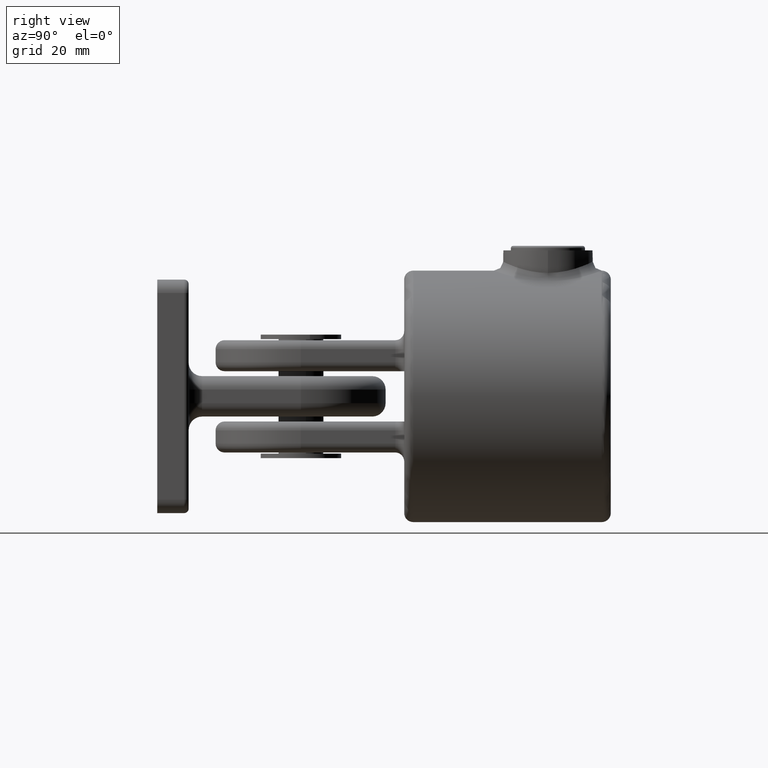
[diagram: clean part render]
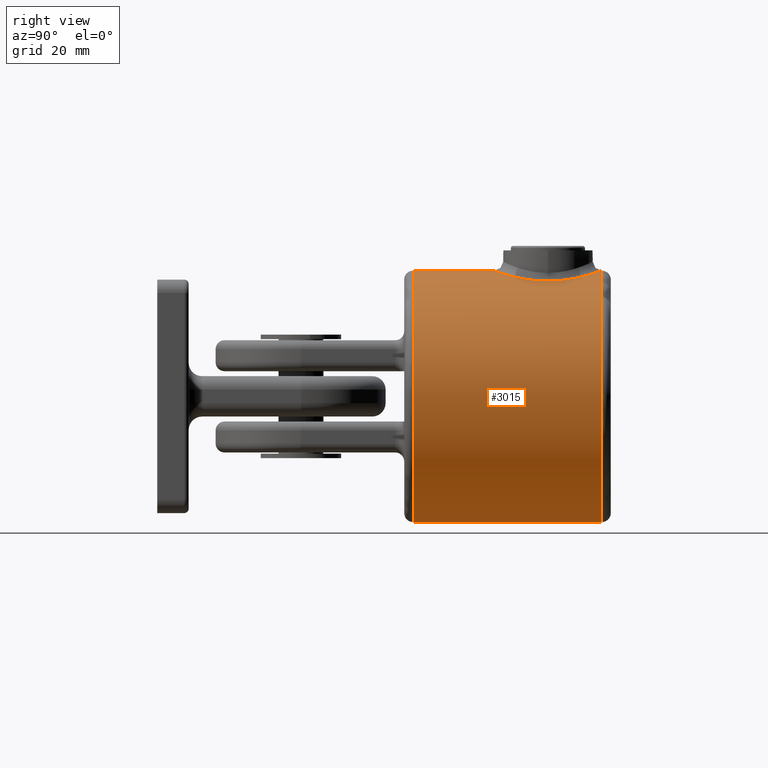
[diagram: same view with one face highlighted and labeled with its STEP entity id]
A machine part, right view. The second image highlights one B-rep face of the part: STEP entity #3015.
In plain terms, the highlighted cylindrical surface (bore or boss wall) has radius 28 mm, axis along (0, 1, -0).
Its self-contained STEP definition (entity closure, byte-faithful):
#28 = CARTESIAN_POINT ( 'NONE',  ( 7.532800549669001811, 5.110973738277556855, 26.96924432193691246 ) ) ;
#81 = CARTESIAN_POINT ( 'NONE',  ( 3.744687437386371887, 2.661515700555105557, 27.75740275072740815 ) ) ;
#128 = CARTESIAN_POINT ( 'NONE',  ( -2.644658232925793051, 25.66780403237011043, 27.87733791148229301 ) ) ;
#608 = ORIENTED_EDGE ( 'NONE', *, *, #3634, .T. ) ;
#996 = CARTESIAN_POINT ( 'NONE',  ( -10.64116031228593862, 10.23714122589253961, 25.89937759353496105 ) ) ;
#1099 = CARTESIAN_POINT ( 'NONE',  ( -4.783712661360009832, 3.142249767967116192, 27.59052361693120403 ) ) ;
#1152 = CARTESIAN_POINT ( 'NONE',  ( -10.11956413345941819, 8.800593386980857247, 26.10896200769188980 ) ) ;
#1209 = CARTESIAN_POINT ( 'NONE',  ( 11.19999059478599790, 13.61864809979259761, 25.66242799652462736 ) ) ;
#1257 = CARTESIAN_POINT ( 'NONE',  ( 11.18308204967106967, 13.23728656933544379, 25.66982781787445589 ) ) ;
#1306 = CARTESIAN_POINT ( 'NONE',  ( -7.543183185850574901, 22.90392337280938051, 26.96989668486448011 ) ) ;
#1367 = CARTESIAN_POINT ( 'NONE',  ( 5.783154808761124421, 3.693566784971920480, 27.40323246549202807 ) ) ;
#1416 = DIRECTION ( 'NONE',  ( -0.000000000000000000, -1.000000000000000000, -0.000000000000000000 ) ) ;
#1420 = CARTESIAN_POINT ( 'NONE',  ( 0.7723240950228391632, 2.021468954359126435, 27.99196728377950905 ) ) ;
#1582 = DIRECTION ( 'NONE',  ( 0.000000000000000000, 1.000000000000000000, 0.000000000000000000 ) ) ;
#2252 = CARTESIAN_POINT ( 'NONE',  ( -2.647919537594742412, 2.333000201121655071, 27.87704396042105515 ) ) ;
#2299 = CARTESIAN_POINT ( 'NONE',  ( -10.51748741808822629, 18.14279243670796760, 25.95001626174369846 ) ) ;
#2373 = DIRECTION ( 'NONE',  ( -0.000000000000000000, -1.000000000000000000, -0.000000000000000000 ) ) ;
#2472 = CARTESIAN_POINT ( 'NONE',  ( -10.92828268449406615, 11.34522445561190196, 25.77941137766213231 ) ) ;
#2528 = CARTESIAN_POINT ( 'NONE',  ( 6.691377683936013732, 23.63099030850856863, 27.19047154736448135 ) ) ;
#2584 = CARTESIAN_POINT ( 'NONE',  ( 0.7696939795550981067, 25.97872372723444556, 27.99203922540072398 ) ) ;
#2643 = CARTESIAN_POINT ( 'NONE',  ( 7.808734503114975745, 22.61113766519815726, 26.89037696588745163 ) ) ;
#2690 = CARTESIAN_POINT ( 'NONE',  ( -3.741970592275058127, 25.31774902416056960, 27.75122849919262080 ) ) ;
#3015 = ADVANCED_FACE ( 'NONE', ( #10236, #11044 ), #13246, .T. ) ;
#3046 = AXIS2_PLACEMENT_3D ( 'NONE', #9155, #1416, #14465 ) ;
#3523 = CARTESIAN_POINT ( 'NONE',  ( -11.13127737483506152, 12.46898257816558697, 25.69272888675468280 ) ) ;
#3572 = CARTESIAN_POINT ( 'NONE',  ( 0.000000000000000000, 2.000000000000001776, 28.00000000000000000 ) ) ;
#3634 = EDGE_CURVE ( 'NONE', #4831, #4831, #15885, .T. ) ;
#3638 = CARTESIAN_POINT ( 'NONE',  ( -10.11484451454184175, 19.20968446854460154, 26.11079207424144144 ) ) ;
#3751 = CARTESIAN_POINT ( 'NONE',  ( 0.000000000000000000, 46.00000000000000000, 0.000000000000000000 ) ) ;
#3786 = EDGE_LOOP ( 'NONE', ( #10391, #10880 ) ) ;
#3805 = CARTESIAN_POINT ( 'NONE',  ( 1.084202172485504434E-16, 1.999999999999998224, 28.00000000000001066 ) ) ;
#3864 = CARTESIAN_POINT ( 'NONE',  ( 7.543656428366906752, 22.87855492968563098, 26.96622558423325344 ) ) ;
#3913 = CARTESIAN_POINT ( 'NONE',  ( 4.099533104611288614, 25.17455714945327117, 27.70048619003869561 ) ) ;
#3966 = CARTESIAN_POINT ( 'NONE',  ( 6.685855451333902799, 4.364677285227934966, 27.19181575693028208 ) ) ;
#4024 = CARTESIAN_POINT ( 'NONE',  ( 3.026452091002769684, 2.417951931987433412, 27.84589731764526377 ) ) ;
#4831 = VERTEX_POINT ( 'NONE', #10327 ) ;
#4832 = CARTESIAN_POINT ( 'NONE',  ( -8.997599709604871876, 6.843450776359100374, 26.51602716940408300 ) ) ;
#4941 = CARTESIAN_POINT ( 'NONE',  ( -9.785390622970792762, 19.88838342800938364, 26.23774433766786984 ) ) ;
#5160 = CARTESIAN_POINT ( 'NONE',  ( 8.561818085885281704, 21.77491502563403003, 26.66402262778221299 ) ) ;
#5199 = B_SPLINE_CURVE_WITH_KNOTS ( 'NONE', 3,
 ( #6224, #14030, #15213, #2252, #6274, #6169, #8747, #1099, #15159, #6109, #8850, #8804, #12655, #13972, #16612, #4832, #16454, #10136, #1152, #11319, #996, #10193, #2472, #3523, #12488, #10026, #13799, #15102, #7401, #16393, #2299, #3638, #4941, #13921, #7518, #16512, #5323, #1306, #9110, #6442, #10405, #11479, #2690, #14140, #128, #11586, #7681, #9162, #2584, #12924, #12815, #9001, #15435, #6548, #3913, #11634, #5270, #2528, #14251, #3864, #2643, #5160, #7901, #11534, #8953, #14075, #7733, #16670, #16725, #10349, #11689, #1209, #1257, #10243, #12869, #6602, #10298, #14304, #7788, #15543, #5217, #14191, #9056, #6500, #28, #15487, #3966, #1367, #7841, #81, #4024, #12981, #15590, #1420, #10459, #3805 ),
 .UNSPECIFIED., .T., .F.,
 ( 4, 2, 2, 2, 2, 2, 2, 2, 2, 2, 2, 2, 2, 2, 2, 2, 2, 2, 2, 2, 2, 2, 2, 2, 2, 2, 2, 2, 2, 2, 2, 2, 2, 2, 2, 2, 2, 2, 2, 2, 2, 2, 2, 2, 2, 2, 2, 4 ),
 ( 0.05573573240919368205, 0.05805783334056103390, 0.05921888380624470982, 0.06037993427192837881, 0.06154098473761205473, 0.06270203520329573066, 0.06502413613466308251, 0.06618518660034676537, 0.06734623706603043436, 0.06966833799739778621, 0.07082938846308146907, 0.07199043892876513806, 0.07431253986013250379, 0.07663464079149986952, 0.07779569125718355238, 0.07895674172286723524, 0.08127884265423460097, 0.08243989311991829771, 0.08360094358560199446, 0.08592304451696937406, 0.08824514544833675367, 0.08940619591402043653, 0.09056724637970411940, 0.09288934731107151288, 0.09405039777675519574, 0.09521144824243887861, 0.09637249870812258923, 0.09753354917380627209, 0.09985565010517363782, 0.1010167005708573484, 0.1021777510365410313, 0.1044998519679084248, 0.1056609024335921077, 0.1068219528992757905, 0.1091440538306431701, 0.1114661547620105359, 0.1126272052276942326, 0.1137882556933779155, 0.1161103566247453089, 0.1172714070904289918, 0.1184324575561126747, 0.1207545584874800682, 0.1219156089531637510, 0.1230766594188474616, 0.1253987603502148274, 0.1277208612815822208, 0.1288819117472659037, 0.1300429622129496143 ),
 .UNSPECIFIED. ) ;
#5217 = CARTESIAN_POINT ( 'NONE',  ( 9.591048099897637513, 7.791215666928285266, 26.30693345468935718 ) ) ;
#5270 = CARTESIAN_POINT ( 'NONE',  ( 5.785074405635080907, 24.30545509505185464, 27.40288355683983923 ) ) ;
#5323 = CARTESIAN_POINT ( 'NONE',  ( -8.296535899870814745, 22.07048086767498418, 26.74390074398356987 ) ) ;
#6109 = CARTESIAN_POINT ( 'NONE',  ( -5.769200118086655671, 3.706748654926748987, 27.40121333363465794 ) ) ;
#6169 = CARTESIAN_POINT ( 'NONE',  ( -3.744827135944821972, 2.683347793272316206, 27.75083880446603146 ) ) ;
#6224 = CARTESIAN_POINT ( 'NONE',  ( 1.084202172485504434E-16, 1.999999999999998224, 28.00000000000001066 ) ) ;
#6274 = CARTESIAN_POINT ( 'NONE',  ( -3.021373893287945922, 2.437737596081587022, 27.83889517251941115 ) ) ;
#6329 = DIRECTION ( 'NONE',  ( 0.000000000000000000, 0.000000000000000000, -1.000000000000000000 ) ) ;
#6442 = CARTESIAN_POINT ( 'NONE',  ( -5.767352570625357444, 24.31738305150062729, 27.40675422498308222 ) ) ;
#6500 = CARTESIAN_POINT ( 'NONE',  ( 7.801396604794496703, 5.381135923657353715, 26.89252246397644086 ) ) ;
#6548 = CARTESIAN_POINT ( 'NONE',  ( 3.742234252473591649, 25.31759204910764538, 27.75117409762413345 ) ) ;
#6602 = CARTESIAN_POINT ( 'NONE',  ( 10.85744776363479858, 10.95586622200028160, 25.80965000872682324 ) ) ;
#7401 = CARTESIAN_POINT ( 'NONE',  ( -10.84089027908294689, 17.03882154598195697, 25.81641548228865446 ) ) ;
#7518 = CARTESIAN_POINT ( 'NONE',  ( -8.984786364356219579, 21.17490072222729580, 26.52036537418151951 ) ) ;
#7681 = CARTESIAN_POINT ( 'NONE',  ( -0.7687833532670446113, 25.99983540633282075, 27.99993855169861234 ) ) ;
#7733 = CARTESIAN_POINT ( 'NONE',  ( 10.25663744761835083, 18.83545114105362117, 26.05421008773298297 ) ) ;
#7788 = CARTESIAN_POINT ( 'NONE',  ( 10.10528906151702166, 8.811221427791643634, 26.11349804759415250 ) ) ;
#7841 = CARTESIAN_POINT ( 'NONE',  ( 5.135538494342041460, 3.305015188848794416, 27.53402142519213669 ) ) ;
#7901 = CARTESIAN_POINT ( 'NONE',  ( 9.008094344440811696, 21.17248677086261566, 26.51466327247760546 ) ) ;
#8180 = EDGE_CURVE ( 'NONE', #9291, #9291, #5199, .T. ) ;
#8747 = CARTESIAN_POINT ( 'NONE',  ( -4.097098644318603711, 2.824551964649088642, 27.70080654027275102 ) ) ;
#8804 = CARTESIAN_POINT ( 'NONE',  ( -6.997881174665810278, 4.597280063608572220, 27.11859708352944409 ) ) ;
#8850 = CARTESIAN_POINT ( 'NONE',  ( -6.087440023879439721, 3.919477437643853701, 27.33203680910113675 ) ) ;
#8953 = CARTESIAN_POINT ( 'NONE',  ( 9.778169008957179997, 19.86412549992865806, 26.23773088389403085 ) ) ;
#9001 = CARTESIAN_POINT ( 'NONE',  ( 2.654956995303310308, 25.66505706688722199, 27.87633630452182842 ) ) ;
#9056 = CARTESIAN_POINT ( 'NONE',  ( 8.559149010179272210, 6.221292398433961424, 26.66494294133507736 ) ) ;
#9110 = CARTESIAN_POINT ( 'NONE',  ( -6.987466508292720313, 23.41187922168014879, 27.12135403363952335 ) ) ;
#9155 = CARTESIAN_POINT ( 'NONE',  ( 0.000000000000000000, 44.00000000000000000, 0.000000000000000000 ) ) ;
#9162 = CARTESIAN_POINT ( 'NONE',  ( 0.3810297461700841160, 26.00008193641980725, 28.00003058959620716 ) ) ;
#9291 = VERTEX_POINT ( 'NONE', #3572 ) ;
#9684 = EDGE_LOOP ( 'NONE', ( #608 ) ) ;
#10026 = CARTESIAN_POINT ( 'NONE',  ( -11.19967922403928995, 14.77934373779500987, 25.66256388984322356 ) ) ;
#10136 = CARTESIAN_POINT ( 'NONE',  ( -9.790936155004080987, 8.122736003462526000, 26.23562788369275367 ) ) ;
#10193 = CARTESIAN_POINT ( 'NONE',  ( -10.84392551868970678, 10.97376392520389032, 25.81513764963068169 ) ) ;
#10236 = FACE_OUTER_BOUND ( 'NONE', #3786, .T. ) ;
#10243 = CARTESIAN_POINT ( 'NONE',  ( 11.11482222801922326, 12.47389903170395442, 25.69945741000236339 ) ) ;
#10298 = CARTESIAN_POINT ( 'NONE',  ( 10.65494919772683780, 10.22386606559775757, 25.89506836407592516 ) ) ;
#10327 = CARTESIAN_POINT ( 'NONE',  ( 0.000000000000000000, 44.00000000000000000, 28.00000000000000000 ) ) ;
#10349 = CARTESIAN_POINT ( 'NONE',  ( 11.13292152234207322, 15.52252160966305006, 25.69202880320895588 ) ) ;
#10391 = ORIENTED_EDGE ( 'NONE', *, *, #15763, .T. ) ;
#10405 = CARTESIAN_POINT ( 'NONE',  ( -5.120726478337096488, 24.70217397589465946, 27.53650125683323324 ) ) ;
#10459 = CARTESIAN_POINT ( 'NONE',  ( 0.3835493169420673976, 1.999999999999997780, 28.00000000000000711 ) ) ;
#10880 = ORIENTED_EDGE ( 'NONE', *, *, #8180, .T. ) ;
#11044 = FACE_OUTER_BOUND ( 'NONE', #9684, .T. ) ;
#11319 = CARTESIAN_POINT ( 'NONE',  ( -10.52201732769975173, 9.870353291977027155, 25.94817951606932382 ) ) ;
#11479 = CARTESIAN_POINT ( 'NONE',  ( -4.093829921693517448, 25.17677839857116950, 27.70127689937103099 ) ) ;
#11534 = CARTESIAN_POINT ( 'NONE',  ( 9.596008841708432158, 20.20009512200968160, 26.30513062793383838 ) ) ;
#11586 = CARTESIAN_POINT ( 'NONE',  ( -1.525117015240219365, 25.91623995995735186, 27.96846014512829015 ) ) ;
#11634 = CARTESIAN_POINT ( 'NONE',  ( 5.138776720604435688, 24.69298453166504359, 27.53335070740720170 ) ) ;
#11689 = CARTESIAN_POINT ( 'NONE',  ( 11.20001879868762984, 14.76175212431766504, 25.66241568733281397 ) ) ;
#12246 = CIRCLE ( 'NONE', #14308, 28.00000000000000000 ) ;
#12488 = CARTESIAN_POINT ( 'NONE',  ( -11.20031858288285775, 13.23127637783641930, 25.66228485079984267 ) ) ;
#12655 = CARTESIAN_POINT ( 'NONE',  ( -7.550984671966509687, 5.103422673934590037, 26.96773982891529897 ) ) ;
#12815 = CARTESIAN_POINT ( 'NONE',  ( 1.911994119712420837, 25.83083547910570488, 27.93712943192083031 ) ) ;
#12869 = CARTESIAN_POINT ( 'NONE',  ( 11.06301791402029799, 12.08973872292364327, 25.72188146330537961 ) ) ;
#12924 = CARTESIAN_POINT ( 'NONE',  ( 1.535044498165718752, 25.89390176891843964, 27.96051371500864846 ) ) ;
#12981 = CARTESIAN_POINT ( 'NONE',  ( 1.914301402700595123, 2.169621157749615836, 27.93696122631473600 ) ) ;
#13246 = CYLINDRICAL_SURFACE ( 'NONE', #15337, 28.00000000000000000 ) ;
#13799 = CARTESIAN_POINT ( 'NONE',  ( -11.13009394266859964, 15.54143636003058226, 25.69324706522869306 ) ) ;
#13921 = CARTESIAN_POINT ( 'NONE',  ( -9.197482581149287739, 20.85846555917672163, 26.44710926666073902 ) ) ;
#13972 = CARTESIAN_POINT ( 'NONE',  ( -8.306205526791613281, 5.940876621926071799, 26.74090574374362461 ) ) ;
#14030 = CARTESIAN_POINT ( 'NONE',  ( -0.7670986338841234708, 1.999999999999998224, 28.00000000000001421 ) ) ;
#14075 = CARTESIAN_POINT ( 'NONE',  ( 10.10794417414012081, 19.18263574293391827, 26.11246016130698067 ) ) ;
#14140 = CARTESIAN_POINT ( 'NONE',  ( -3.017846930624617396, 25.56333164282316517, 27.83928208541254534 ) ) ;
#14191 = CARTESIAN_POINT ( 'NONE',  ( 9.005356603280404215, 6.823969582913049337, 26.51556822366380928 ) ) ;
#14251 = CARTESIAN_POINT ( 'NONE',  ( 6.983596915634178615, 23.38981782003025955, 27.11666367178940007 ) ) ;
#14294 = DIRECTION ( 'NONE',  ( 0.000000000000000000, 0.000000000000000000, 1.000000000000000000 ) ) ;
#14304 = CARTESIAN_POINT ( 'NONE',  ( 10.25483688388772663, 9.160078293518528980, 26.05492175158913071 ) ) ;
#14308 = AXIS2_PLACEMENT_3D ( 'NONE', #15691, #1582, #14294 ) ;
#14465 = DIRECTION ( 'NONE',  ( 0.000000000000000000, 0.000000000000000000, 1.000000000000000000 ) ) ;
#15102 = CARTESIAN_POINT ( 'NONE',  ( -10.92577338173779644, 16.66668853011640650, 25.78047633370624325 ) ) ;
#15159 = CARTESIAN_POINT ( 'NONE',  ( -5.118052429668465741, 3.318747910106222498, 27.53026882333432113 ) ) ;
#15213 = CARTESIAN_POINT ( 'NONE',  ( -1.524910073671443378, 2.083553751982344160, 27.96853375961122268 ) ) ;
#15337 = AXIS2_PLACEMENT_3D ( 'NONE', #3751, #2373, #6329 ) ;
#15435 = CARTESIAN_POINT ( 'NONE',  ( 3.020968822713581581, 25.56234010979909854, 27.83892469850844975 ) ) ;
#15487 = CARTESIAN_POINT ( 'NONE',  ( 6.975530875436730227, 4.603399611075827735, 27.11872401908409103 ) ) ;
#15543 = CARTESIAN_POINT ( 'NONE',  ( 9.772664535757286330, 8.125171616975201516, 26.23979182787224573 ) ) ;
#15590 = CARTESIAN_POINT ( 'NONE',  ( 1.537744923065791580, 2.106497010976612572, 27.96036583229053818 ) ) ;
#15691 = CARTESIAN_POINT ( 'NONE',  ( 0.000000000000000000, 2.000000000000001776, 0.000000000000000000 ) ) ;
#15763 = EDGE_CURVE ( 'NONE', #9291, #9291, #12246, .T. ) ;
#15885 = CIRCLE ( 'NONE', #3046, 28.00000000000000000 ) ;
#16393 = CARTESIAN_POINT ( 'NONE',  ( -10.63678926715903117, 17.77712175889246282, 25.90117612162273275 ) ) ;
#16454 = CARTESIAN_POINT ( 'NONE',  ( -9.207349203485367894, 7.156862051197976804, 26.44366409852874966 ) ) ;
#16512 = CARTESIAN_POINT ( 'NONE',  ( -8.534592995441164121, 21.78031354842309497, 26.66864990949811087 ) ) ;
#16612 = CARTESIAN_POINT ( 'NONE',  ( -8.546146759903717083, 6.234162268495701653, 26.66495589610163464 ) ) ;
#16670 = CARTESIAN_POINT ( 'NONE',  ( 10.65526512906178525, 17.77465600306319971, 25.89492662935841238 ) ) ;
#16725 = CARTESIAN_POINT ( 'NONE',  ( 10.85833903498768116, 17.04136910509024716, 25.80927660839817861 ) ) ;